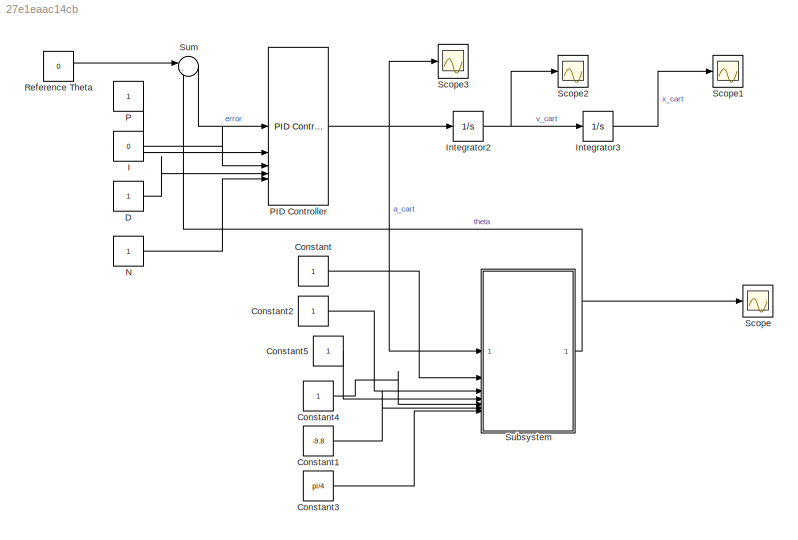
MODEL slx_27e1eaac14cb
KIND model
CONFIG AbsTol = auto
CONFIG EnableMultiTasking = off
CONFIG FixedStep = auto
CONFIG MaxStep = auto
CONFIG MinStep = auto
CONFIG RelTol = 1e-3
CONFIG SampleTimeConstraint = Unconstrained
CONFIG SolverName = VariableStepAuto
CONFIG StartTime = 0.0
CONFIG StopTime = 500
BLOCK [Constant] Constant
BLOCK [Constant] Constant1
  Value = -9.8
BLOCK [Constant] Constant2
BLOCK [Constant] Constant3
  Value = pi/4
BLOCK [Constant] Constant4
BLOCK [Constant] Constant5
BLOCK [Constant] D
BLOCK [Constant] I
  Value = 0
BLOCK [Integrator] Integrator2
BLOCK [Integrator] Integrator3
  LowerSaturationLimit = -3
  UpperSaturationLimit = 3
BLOCK [Constant] N
BLOCK [Constant] P
BLOCK [Reference] PID Controller  REF=slpidlib/PID Controller
  LibrarySourceBlock = simulink/Continuous/PID Controller
  SourceBlock = slpidlib/PID Controller
  SourceType = PID 1dof
BLOCK [Constant] Reference Theta
  Value = 0
BLOCK [Scope] Scope
  Floating = off
  NumInputPorts = 1
  ScopeSpecificationString = Simulink.scopes.TimeScopeBlockCfg('CurrentConfiguration', extmgr.ConfigurationSet(extmgr.Configuration('Core','General UI',true),extmgr.Configuration('Core','Source UI',true),extmgr.Configuration('Sources','WiredSimulink',true,'DataLoggingVariableName','ScopeData1'),extmgr.Configuration('Visuals','Time Domain',true,'SerializedDisplays',{struct('MinYLimReal','-0.70469','MaxYLimReal','0.95096','YLab...<+1569ch>
BLOCK [Scope] Scope1
  Floating = off
  NumInputPorts = 1
  ScopeSpecificationString = Simulink.scopes.TimeScopeBlockCfg('CurrentConfiguration', extmgr.ConfigurationSet(extmgr.Configuration('Core','General UI',true),extmgr.Configuration('Core','Source UI',true),extmgr.Configuration('Sources','WiredSimulink',true,'DataLoggingVariableName','ScopeData2'),extmgr.Configuration('Visuals','Time Domain',true,'SerializedDisplays',{struct('MinYLimReal','-0.08954','MaxYLimReal','0.4778','YLabe...<+1521ch>
BLOCK [Scope] Scope2
  Floating = off
  NumInputPorts = 1
  ScopeSpecificationString = Simulink.scopes.TimeScopeBlockCfg('CurrentConfiguration', extmgr.ConfigurationSet(extmgr.Configuration('Core','General UI',true),extmgr.Configuration('Core','Source UI',true),extmgr.Configuration('Sources','WiredSimulink',true,'DataLoggingVariableName','ScopeData3'),extmgr.Configuration('Visuals','Time Domain',true,'SerializedDisplays',{struct('MinYLimReal','-0.85752','MaxYLimReal','0.84623','YLab...<+1570ch>
BLOCK [Scope] Scope3
  Floating = off
  NumInputPorts = 1
  ScopeSpecificationString = Simulink.scopes.TimeScopeBlockCfg('CurrentConfiguration', extmgr.ConfigurationSet(extmgr.Configuration('Core','General UI',true),extmgr.Configuration('Core','Source UI',true),extmgr.Configuration('Sources','WiredSimulink',true),extmgr.Configuration('Visuals','Time Domain',true,'SerializedDisplays',{struct('MinYLimReal','-2.61652','MaxYLimReal','2.90872','YLabelReal','','MinYLimMag','0.00000','MaxY...<+1539ch>
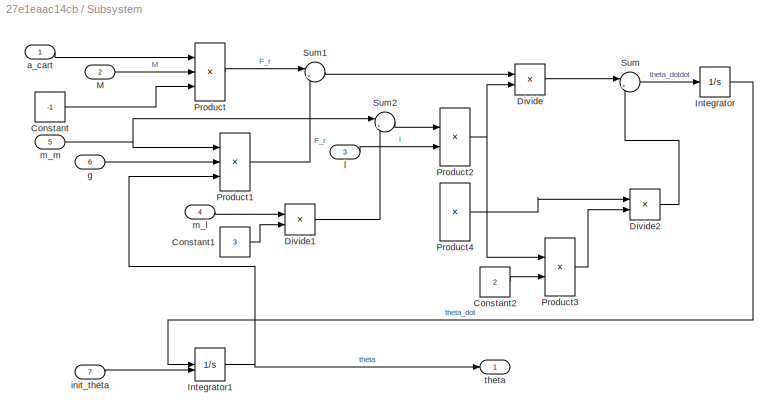
BLOCK [SubSystem] Subsystem
BLOCK [Constant] Subsystem/Constant
  Value = -1
BLOCK [Constant] Subsystem/Constant1
  Value = 3
BLOCK [Constant] Subsystem/Constant2
  Value = 2
BLOCK [Product] Subsystem/Divide
  Inputs = */
BLOCK [Product] Subsystem/Divide1
  Inputs = */
BLOCK [Product] Subsystem/Divide2
  Inputs = */
BLOCK [Integrator] Subsystem/Integrator
BLOCK [Integrator] Subsystem/Integrator1
  InitialCondition = pi
  InitialConditionSource = external
  LimitOutput = on
  LowerSaturationLimit = -pi
  UpperSaturationLimit = pi
BLOCK [Inport] Subsystem/M
  Port = 2
BLOCK [Product] Subsystem/Product
  Inputs = 3
BLOCK [Product] Subsystem/Product1
  Inputs = 3
BLOCK [Product] Subsystem/Product2
BLOCK [Product] Subsystem/Product3
BLOCK [Product] Subsystem/Product4
  Inputs = 3
BLOCK [Sum] Subsystem/Sum
  Inputs = |++
BLOCK [Sum] Subsystem/Sum1
  Inputs = |++
BLOCK [Sum] Subsystem/Sum2
  Inputs = |++
BLOCK [Inport] Subsystem/a_cart
BLOCK [Inport] Subsystem/g
  Port = 6
BLOCK [Inport] Subsystem/init_theta
  Port = 7
BLOCK [Inport] Subsystem/l
  Port = 3
BLOCK [Inport] Subsystem/m_l
  Port = 4
BLOCK [Inport] Subsystem/m_m
  Port = 5
BLOCK [Outport] Subsystem/theta
BLOCK [Sum] Sum
  Inputs = |-+
LINE Constant1:1 -> Subsystem:6
LINE Constant2:1 -> Subsystem:3
LINE Constant3:1 -> Subsystem:7
LINE Constant4:1 -> Subsystem:5
LINE Constant5:1 -> Subsystem:4
LINE Constant:1 -> Subsystem:2
LINE D:1 -> PID Controller:4
LINE I:1 -> PID Controller:3
NET Integrator2:1 -> Integrator3:1, Scope2:1
LINE Integrator3:1 -> Scope1:1
LINE N:1 -> PID Controller:5
LINE P:1 -> PID Controller:2
NET PID Controller:1 -> Integrator2:1, Scope3:1, Subsystem:1
LINE Reference Theta:1 -> Sum:1
LINE Subsystem/Constant1:1 -> Subsystem/Divide1:2
LINE Subsystem/Constant2:1 -> Subsystem/Product3:2
LINE Subsystem/Constant:1 -> Subsystem/Product:3
LINE Subsystem/Divide1:1 -> Subsystem/Sum2:2
LINE Subsystem/Divide2:1 -> Subsystem/Sum:2
LINE Subsystem/Divide:1 -> Subsystem/Sum:1
NET Subsystem/Integrator1:1 -> Subsystem/Product1:3, Subsystem/theta:1
LINE Subsystem/Integrator:1 -> Subsystem/Integrator1:1
LINE Subsystem/M:1 -> Subsystem/Product:2
LINE Subsystem/Product1:1 -> Subsystem/Sum1:2
NET Subsystem/Product2:1 -> Subsystem/Divide:2, Subsystem/Product3:1
LINE Subsystem/Product3:1 -> Subsystem/Divide2:2
LINE Subsystem/Product4:1 -> Subsystem/Divide2:1
LINE Subsystem/Product:1 -> Subsystem/Sum1:1
LINE Subsystem/Sum1:1 -> Subsystem/Divide:1
LINE Subsystem/Sum2:1 -> Subsystem/Product2:1
LINE Subsystem/Sum:1 -> Subsystem/Integrator:1
LINE Subsystem/a_cart:1 -> Subsystem/Product:1
LINE Subsystem/g:1 -> Subsystem/Product1:2
LINE Subsystem/init_theta:1 -> Subsystem/Integrator1:2
LINE Subsystem/l:1 -> Subsystem/Product2:2
LINE Subsystem/m_l:1 -> Subsystem/Divide1:1
NET Subsystem/m_m:1 -> Subsystem/Product1:1, Subsystem/Sum2:1
NET Subsystem:1 -> Scope:1, Sum:2
LINE Sum:1 -> PID Controller:1
note: NET lines group one-source signal fan-out (src -> all destinations, sorted); 1:1 wires keep LINE
